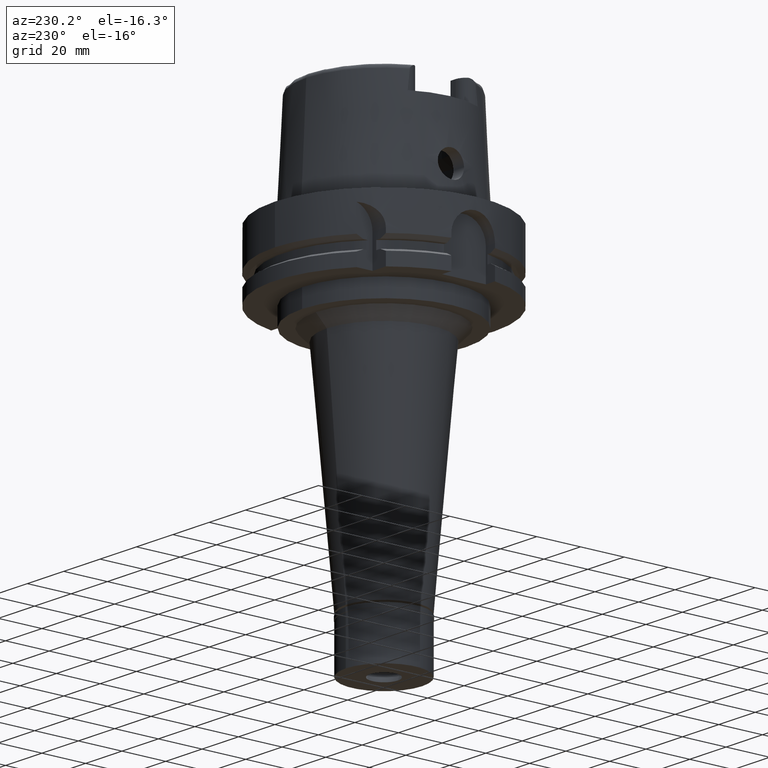
[diagram: clean part render]
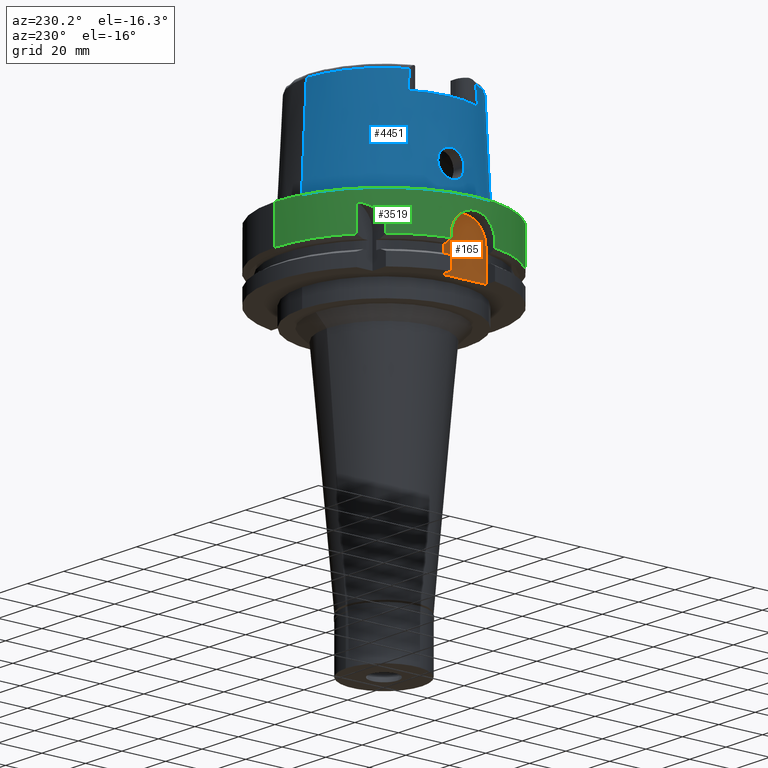
[diagram: same view with three faces highlighted in distinct colors, each labeled with its STEP entity id]
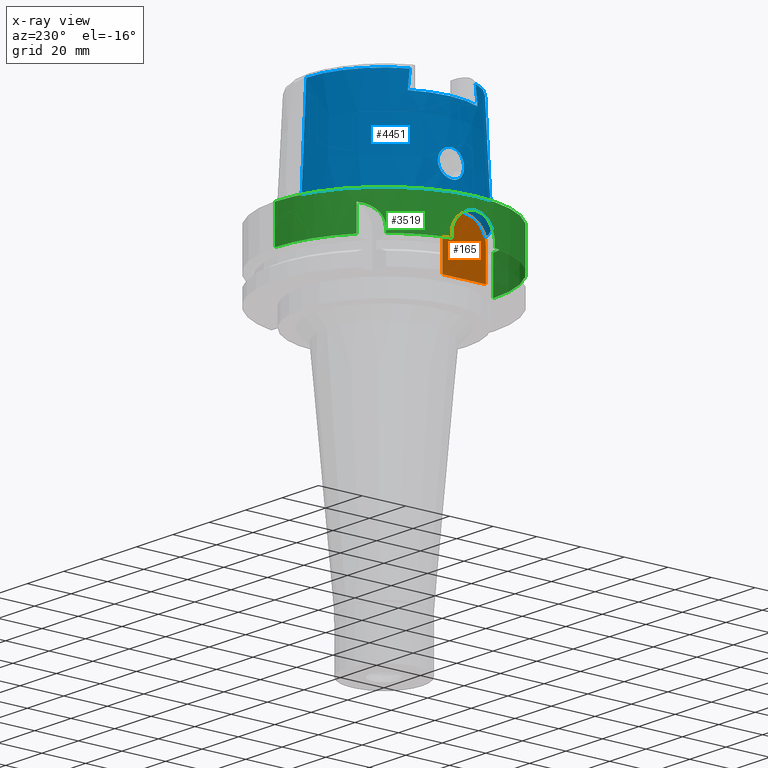
[diagram: x-ray of the same camera — body ghosted, the three highlighted faces saturated]
A machine part, auxiliary view with three faces highlighted in distinct colors.
The next image is the same camera in x-ray (body ghosted, the three faces saturated) — at least one of them is partly hidden behind the body in this view.
Their STEP definitions:

[orange] entity #165 — the highlighted planar face has unit normal (1, 0, 0).
#165 = ADVANCED_FACE ( 'NONE', ( #3697 ), #4884, .F. ) ;
#196 = AXIS2_PLACEMENT_3D ( 'NONE', #2384, #4124, #1540 ) ;
#250 = DIRECTION ( 'NONE',  ( 0.0000000000000000000, 0.0000000000000000000, 1.000000000000000000 ) ) ;
#315 = DIRECTION ( 'NONE',  ( 0.0000000000000000000, 1.000000000000000000, 0.0000000000000000000 ) ) ;
#445 = VERTEX_POINT ( 'NONE', #5253 ) ;
#458 = DIRECTION ( 'NONE',  ( 1.000000000000000000, 0.0000000000000000000, 0.0000000000000000000 ) ) ;
#491 = CARTESIAN_POINT ( 'NONE',  ( -44.00000000000000000, 10.00000000000000000, -29.00000000000000000 ) ) ;
#565 = CARTESIAN_POINT ( 'NONE',  ( -44.00000000000000000, -10.00000000000000000, -29.00000000000000000 ) ) ;
#641 = LINE ( 'NONE', #4100, #5303 ) ;
#997 = VERTEX_POINT ( 'NONE', #491 ) ;
#1146 = DIRECTION ( 'NONE',  ( 0.0000000000000000000, 0.0000000000000000000, -1.000000000000000000 ) ) ;
#1188 = EDGE_CURVE ( 'NONE', #445, #997, #4986, .T. ) ;
#1418 = CIRCLE ( 'NONE', #3675, 10.00000000000000000 ) ;
#1540 = DIRECTION ( 'NONE',  ( 0.0000000000000000000, 1.000000000000000000, 0.0000000000000000000 ) ) ;
#1571 = VECTOR ( 'NONE', #315, 1000.000000000000000 ) ;
#1874 = VERTEX_POINT ( 'NONE', #4251 ) ;
#1985 = CARTESIAN_POINT ( 'NONE',  ( -44.00000000000000000, 10.00000000000000000, -15.00000000000000000 ) ) ;
#1990 = VECTOR ( 'NONE', #1146, 1000.000000000000000 ) ;
#2009 = LINE ( 'NONE', #3692, #1571 ) ;
#2184 = EDGE_CURVE ( 'NONE', #4912, #997, #2009, .T. ) ;
#2384 = CARTESIAN_POINT ( 'NONE',  ( -44.00000000000000000, 0.0000000000000000000, 0.0000000000000000000 ) ) ;
#2428 = ORIENTED_EDGE ( 'NONE', *, *, #1188, .T. ) ;
#2611 = CARTESIAN_POINT ( 'NONE',  ( -44.00000000000000000, 0.0000000000000000000, -15.00000000000000000 ) ) ;
#2706 = DIRECTION ( 'NONE',  ( 0.0000000000000000000, 0.0000000000000000000, 1.000000000000000000 ) ) ;
#2819 = ORIENTED_EDGE ( 'NONE', *, *, #4037, .F. ) ;
#3411 = EDGE_CURVE ( 'NONE', #4912, #1874, #641, .T. ) ;
#3422 = ORIENTED_EDGE ( 'NONE', *, *, #2184, .F. ) ;
#3635 = EDGE_LOOP ( 'NONE', ( #5043, #2819, #2428, #3422 ) ) ;
#3675 = AXIS2_PLACEMENT_3D ( 'NONE', #2611, #458, #2706 ) ;
#3692 = CARTESIAN_POINT ( 'NONE',  ( -44.00000000000000000, -10.00000000000000000, -29.00000000000000000 ) ) ;
#3697 = FACE_OUTER_BOUND ( 'NONE', #3635, .T. ) ;
#4037 = EDGE_CURVE ( 'NONE', #445, #1874, #1418, .T. ) ;
#4100 = CARTESIAN_POINT ( 'NONE',  ( -44.00000000000000000, -10.00000000000000000, -29.00000000000000000 ) ) ;
#4124 = DIRECTION ( 'NONE',  ( 1.000000000000000000, 0.0000000000000000000, 0.0000000000000000000 ) ) ;
#4251 = CARTESIAN_POINT ( 'NONE',  ( -44.00000000000000000, -10.00000000000000000, -15.00000000000000000 ) ) ;
#4884 = PLANE ( 'NONE',  #196 ) ;
#4912 = VERTEX_POINT ( 'NONE', #565 ) ;
#4986 = LINE ( 'NONE', #1985, #1990 ) ;
#5043 = ORIENTED_EDGE ( 'NONE', *, *, #3411, .T. ) ;
#5253 = CARTESIAN_POINT ( 'NONE',  ( -44.00000000000000000, 10.00000000000000000, -15.00000000000000000 ) ) ;
#5303 = VECTOR ( 'NONE', #250, 1000.000000000000000 ) ;

[blue] entity #4451 — the highlighted conical surface has half-angle 2.862 deg.
#24 = CARTESIAN_POINT ( 'NONE',  ( -36.93068436028448076, 5.617670321740685146, 12.89130145594140586 ) ) ;
#27 = CARTESIAN_POINT ( 'NONE',  ( 0.0000000000000000000, 0.0000000000000000000, 48.09987853799000135 ) ) ;
#39 = EDGE_LOOP ( 'NONE', ( #2132, #3728 ) ) ;
#66 = CARTESIAN_POINT ( 'NONE',  ( -36.78948830266099179, -5.983490370262749103, 14.54526738683545162 ) ) ;
#91 = CARTESIAN_POINT ( 'NONE',  ( -32.25000000000000000, 15.37357338888783609, 45.48332191089897947 ) ) ;
#117 = CARTESIAN_POINT ( 'NONE',  ( -36.85894404422809600, -3.184277916997942270, 20.08887708239250713 ) ) ;
#131 = ORIENTED_EDGE ( 'NONE', *, *, #1677, .F. ) ;
#137 = LINE ( 'NONE', #2226, #2557 ) ;
#150 = CARTESIAN_POINT ( 'NONE',  ( -36.86793002416438014, -3.018326314165773461, 20.18926689095858862 ) ) ;
#153 = ORIENTED_EDGE ( 'NONE', *, *, #4420, .T. ) ;
#160 = CARTESIAN_POINT ( 'NONE',  ( -32.25000000000000000, -15.68478778348018210, 42.78313265252550224 ) ) ;
#170 = DIRECTION ( 'NONE',  ( 0.0000000000000000000, -1.000000000000000000, 0.0000000000000000000 ) ) ;
#176 = CARTESIAN_POINT ( 'NONE',  ( -36.95523731448006544, -5.529040350771977863, 12.66967112847068400 ) ) ;
#200 = CARTESIAN_POINT ( 'NONE',  ( -36.91466357299182732, 1.955068129600041171, 20.67420638359301677 ) ) ;
#217 = CARTESIAN_POINT ( 'NONE',  ( -37.37942141452085565, -3.092186478232816782, 9.857925840274342377 ) ) ;
#227 = CARTESIAN_POINT ( 'NONE',  ( -36.73198315790276069, 5.236774363304121493, 17.93427630140174855 ) ) ;
#305 = CARTESIAN_POINT ( 'NONE',  ( -36.87019513624344569, 2.964170396533520879, 20.21776405205810434 ) ) ;
#332 = CARTESIAN_POINT ( 'NONE',  ( -37.23074756365934945, -4.183448302256589812, 10.69895862871962855 ) ) ;
#334 = VERTEX_POINT ( 'NONE', #5136 ) ;
#339 = CARTESIAN_POINT ( 'NONE',  ( -37.01935775380975002, 5.274344948985751458, 12.13801447301412217 ) ) ;
#367 = CARTESIAN_POINT ( 'NONE',  ( -36.75520645655166163, 5.997840051433888320, 15.17277875248655583 ) ) ;
#422 = CARTESIAN_POINT ( 'NONE',  ( -37.21841691081660031, 4.258828831430355955, 10.77358605651554946 ) ) ;
#423 = CARTESIAN_POINT ( 'NONE',  ( -32.24999876011999334, -15.99794043148000000, 40.00000000000000000 ) ) ;
#432 = VERTEX_POINT ( 'NONE', #2185 ) ;
#438 = B_SPLINE_CURVE_WITH_KNOTS ( 'NONE', 3,
 ( #3252, #5056, #728, #1570, #1973, #1101, #2802, #2445, #1180, #1546, #2022, #3308, #2363, #2855, #4102, #3333, #217, #5032, #4599, #1493, #2908, #4623, #3226, #4947, #1947, #1080, #3678, #5400, #1521, #2827, #332, #5084, #4213, #1628, #4659, #3361, #1206, #2936, #788, #2051, #3784, #5503, #4841, #5241, #4870, #3120, #176, #4449, #1788, #2786, #4002, #66, #2665, #4898, #3946, #1362, #4393, #4030, #1900, #1840, #1426, #3515, #4062, #3629, #3605, #5353, #3089, #5302, #5328, #1001, #2324, #4475, #1391, #515, #1877, #624, #975, #1448, #4807, #2261, #1059, #1027, #942, #3154, #3570, #4505, #2727, #567, #2288, #117, #150, #3179, #2751, #1813, #1474, #3200, #598, #2237, #4921 ),
 .UNSPECIFIED., .F., .F.,
 ( 4, 2, 2, 1, 1, 1, 2, 2, 2, 2, 1, 1, 1, 2, 2, 2, 2, 1, 1, 2, 2, 2, 2, 2, 2, 1, 1, 2, 2, 2, 2, 2, 1, 2, 2, 2, 2, 1, 1, 1, 1, 2, 2, 2, 2, 2, 1, 1, 2, 2, 2, 1, 2, 2, 2, 1, 2, 2, 4 ),
 ( 0.0000000000000000000, 0.06250000000000170697, 0.09375000000000252576, 0.1093750000000029837, 0.1171875000000032335, 0.1210937500000033723, 0.1230468750000034833, 0.1250000000000035805, 0.1562500000000048572, 0.1718750000000054678, 0.1796875000000057732, 0.1835937500000058564, 0.1855468750000058842, 0.1865234375000058842, 0.1875000000000058842, 0.2187500000000053568, 0.2343750000000050793, 0.2421875000000048850, 0.2460937500000047740, 0.2480468750000047184, 0.2500000000000046629, 0.2812500000000014433, 0.2968750000000000555, 0.3124999999999986677, 0.3437499999999958922, 0.3593749999999943379, 0.3671874999999935052, 0.3710937499999932832, 0.3749999999999930056, 0.4374999999999905631, 0.4687499999999893974, 0.4843749999999886202, 0.4921874999999881206, 0.4960937499999880096, 0.4999999999999878986, 0.5624999999999853451, 0.5937499999999841238, 0.6093749999999832356, 0.6171874999999827915, 0.6210937499999825695, 0.6230468749999823475, 0.6240234374999823475, 0.6249999999999822364, 0.6874999999999886757, 0.7187499999999918954, 0.7343749999999935607, 0.7421874999999944489, 0.7460937499999948930, 0.7480468749999952260, 0.7499999999999955591, 0.7812499999999972244, 0.7968749999999981126, 0.8046874999999983347, 0.8124999999999985567, 0.8437499999999987788, 0.8593749999999987788, 0.8671874999999987788, 0.8749999999999987788, 1.000000000000000000 ),
 .UNSPECIFIED. ) ;
#505 = FACE_BOUND ( 'NONE', #39, .T. ) ;
#515 = CARTESIAN_POINT ( 'NONE',  ( -36.75653053390755787, -4.828221476589451555, 18.56846901973030839 ) ) ;
#527 = CARTESIAN_POINT ( 'NONE',  ( -32.25000136840999687, 15.06443228278000035, 48.09991921489999811 ) ) ;
#567 = CARTESIAN_POINT ( 'NONE',  ( -36.84474318560327788, -3.423703545557308825, 19.92754143725899851 ) ) ;
#598 = CARTESIAN_POINT ( 'NONE',  ( -36.93369848665521005, -1.519966967173632444, 20.86588692522766664 ) ) ;
#624 = CARTESIAN_POINT ( 'NONE',  ( -36.77364828063821989, -4.558378209594252439, 18.90302554947898628 ) ) ;
#651 = CARTESIAN_POINT ( 'NONE',  ( -36.85257443627512686, 3.289356971688951692, 20.01800090029430024 ) ) ;
#680 = CARTESIAN_POINT ( 'NONE',  ( -36.81715628922307104, 3.887143032744000859, 19.57163193421597214 ) ) ;
#728 = CARTESIAN_POINT ( 'NONE',  ( -37.54237951231164061, -0.7534743950294695569, 9.034802957735099227 ) ) ;
#732 = EDGE_LOOP ( 'NONE', ( #2653, #937, #3037, #2642, #131, #153, #1895, #2447 ) ) ;
#739 = LINE ( 'NONE', #2146, #5286 ) ;
#760 = CARTESIAN_POINT ( 'NONE',  ( -36.74781720243431238, 5.991735761482282818, 15.33907715070706601 ) ) ;
#788 = CARTESIAN_POINT ( 'NONE',  ( -37.09653634253758980, -4.923255396705496167, 11.56912838913505936 ) ) ;
#821 = CARTESIAN_POINT ( 'NONE',  ( -37.20985797293272412, 4.309473625512322492, 10.82513451982124586 ) ) ;
#847 = CARTESIAN_POINT ( 'NONE',  ( -37.05825323781632363, 5.102623598740752442, 11.84270549582950771 ) ) ;
#883 = CARTESIAN_POINT ( 'NONE',  ( -36.94480358421540700, 5.567225764327171866, 12.76252301544932521 ) ) ;
#937 = ORIENTED_EDGE ( 'NONE', *, *, #2805, .T. ) ;
#942 = CARTESIAN_POINT ( 'NONE',  ( -36.80255068474041735, -4.111916453154789153, 19.37386698733754642 ) ) ;
#975 = CARTESIAN_POINT ( 'NONE',  ( -36.78079645898990435, -4.447312784221773896, 19.02796649498167270 ) ) ;
#987 = B_SPLINE_CURVE_WITH_KNOTS ( 'NONE', 3,
 ( #3977, #91, #3541, #5270 ),
 .UNSPECIFIED., .F., .F.,
 ( 4, 4 ),
 ( 0.0000000000000000000, 1.000000000000000000 ),
 .UNSPECIFIED. ) ;
#1001 = CARTESIAN_POINT ( 'NONE',  ( -36.71910970930957063, -5.545533153418433336, 17.29065203007789364 ) ) ;
#1027 = CARTESIAN_POINT ( 'NONE',  ( -36.79298029499037881, -4.259190257377762912, 19.22604413286766700 ) ) ;
#1030 = EDGE_CURVE ( 'NONE', #4326, #432, #4968, .T. ) ;
#1059 = CARTESIAN_POINT ( 'NONE',  ( -36.79221737387307201, -4.270934812731067787, 19.21418130331075957 ) ) ;
#1080 = CARTESIAN_POINT ( 'NONE',  ( -37.28518679442415618, -3.827104306910952491, 10.37799374666771790 ) ) ;
#1085 = CARTESIAN_POINT ( 'NONE',  ( -36.90237954545867183, 2.272849529550918568, 20.55285498938613742 ) ) ;
#1101 = CARTESIAN_POINT ( 'NONE',  ( -37.49283556371231896, -1.803152860645853117, 9.276495912505875907 ) ) ;
#1106 = CARTESIAN_POINT ( 'NONE',  ( -36.71932881182011954, 5.538174630500861895, 17.30840580529251937 ) ) ;
#1125 = DIRECTION ( 'NONE',  ( -0.8958345712659759874, -0.4443876921390880197, 0.0000000000000000000 ) ) ;
#1135 = CARTESIAN_POINT ( 'NONE',  ( -36.85046108883013716, 3.326711515121958396, 19.99330972901003278 ) ) ;
#1136 = CIRCLE ( 'NONE', #1491, 38.00001658251999714 ) ;
#1163 = CARTESIAN_POINT ( 'NONE',  ( -36.90187714742415181, 2.285054288073348427, 20.54784376291257075 ) ) ;
#1180 = CARTESIAN_POINT ( 'NONE',  ( -37.46510107565926262, -2.193266545402262402, 9.415136530644529600 ) ) ;
#1186 = CARTESIAN_POINT ( 'NONE',  ( -36.90823920757393495, 2.126274937019970501, 20.61103914958664873 ) ) ;
#1198 = CARTESIAN_POINT ( 'NONE',  ( 0.0000000000000000000, 35.59494289391000166, 48.09987853799000135 ) ) ;
#1206 = CARTESIAN_POINT ( 'NONE',  ( -37.13186623513949769, -4.746795368158858608, 11.32880529840026718 ) ) ;
#1214 = CARTESIAN_POINT ( 'NONE',  ( -37.42948711580961429, 2.608070023819862637, 9.595758542897517174 ) ) ;
#1247 = CARTESIAN_POINT ( 'NONE',  ( -37.07944210104972882, 5.003801075000452236, 11.68908971727001145 ) ) ;
#1270 = CARTESIAN_POINT ( 'NONE',  ( -36.94822394848094405, 5.554785405398306786, 12.73187237993180254 ) ) ;
#1295 = CARTESIAN_POINT ( 'NONE',  ( -36.90758312289656118, 5.696177482428607775, 13.11204638049937365 ) ) ;
#1321 = VERTEX_POINT ( 'NONE', #4785 ) ;
#1343 = B_SPLINE_CURVE_WITH_KNOTS ( 'NONE', 3,
 ( #3233, #4953, #5376, #5040, #1580, #2368, #200, #1186, #2400, #4085, #1085, #1163, #1927, #3652, #4529, #2004, #305, #1979, #1553, #4140, #651, #3734, #1135, #4108, #2866, #680, #5455, #2888, #3684, #4554, #4584, #2030, #4605, #2452, #4188, #227, #5405, #1526, #3765, #5485, #3258, #4979, #1106, #3340, #1610, #5062, #2914, #4630, #5147, #760, #367, #2599, #2945, #3906, #4221, #2086, #2483, #4717, #4691, #1295, #5122, #24, #2110, #883, #5173, #1270, #3397, #5090, #2998, #339, #1693, #3851, #847, #5537, #2058, #5571, #1247, #2566, #3427, #3451, #2511, #1635, #821, #1743, #4303, #422, #3023, #5203, #3479, #4745, #2540, #1214, #3791, #1716, #5510, #3367, #4666, #4329, #4247, #3818, #2143 ),
 .UNSPECIFIED., .F., .F.,
 ( 4, 2, 2, 1, 1, 1, 1, 2, 2, 2, 2, 1, 1, 2, 2, 2, 1, 1, 1, 2, 2, 2, 2, 2, 1, 1, 2, 2, 2, 2, 1, 1, 2, 2, 2, 2, 2, 1, 1, 1, 2, 2, 2, 2, 1, 1, 2, 2, 2, 1, 1, 1, 2, 2, 2, 2, 2, 1, 1, 2, 2, 4 ),
 ( 0.0000000000000000000, 0.06249999999997654654, 0.09374999999996487532, 0.1093749999999590328, 0.1171874999999560490, 0.1210937499999545502, 0.1230468749999538841, 0.1240234374999535788, 0.1249999999999532874, 0.1562499999999483469, 0.1718749999999459321, 0.1796874999999447386, 0.1835937499999439615, 0.1855468749999435729, 0.1874999999999432121, 0.2187499999999383826, 0.2343749999999358569, 0.2421874999999347189, 0.2460937499999341915, 0.2480468749999340805, 0.2499999999999339972, 0.3124999999999306666, 0.3437499999999292788, 0.3593749999999283351, 0.3671874999999275579, 0.3710937499999273914, 0.3730468749999276690, 0.3749999999999279465, 0.4374999999999317213, 0.4687499999999338862, 0.4843749999999348854, 0.4921874999999353850, 0.4960937499999357181, 0.4999999999999361622, 0.5624999999999384936, 0.5937499999999396039, 0.6093749999999401590, 0.6171874999999404920, 0.6210937499999407141, 0.6230468749999407141, 0.6240234374999409361, 0.6249999999999410472, 0.6562499999999493738, 0.6718749999999535927, 0.6796874999999557021, 0.6835937499999565903, 0.6855468749999571454, 0.6874999999999575895, 0.7187499999999646949, 0.7343749999999680256, 0.7421874999999696909, 0.7460937499999704681, 0.7480468749999709122, 0.7499999999999712452, 0.8124999999999792388, 0.8437499999999831246, 0.8593749999999851230, 0.8671874999999861222, 0.8710937499999865663, 0.8730468749999867883, 0.8749999999999870104, 1.000000000000000000 ),
 .UNSPECIFIED. ) ;
#1355 = DIRECTION ( 'NONE',  ( 0.0000000000000000000, 0.0000000000000000000, -1.000000000000000000 ) ) ;
#1362 = CARTESIAN_POINT ( 'NONE',  ( -36.76804357732692097, -5.999429868617379036, 14.91422846187562534 ) ) ;
#1391 = CARTESIAN_POINT ( 'NONE',  ( -36.74922141481820148, -4.946669627970263328, 18.40127601821275860 ) ) ;
#1426 = CARTESIAN_POINT ( 'NONE',  ( -36.71983978496632517, -5.850209405998165302, 16.34663072168687492 ) ) ;
#1436 = DIRECTION ( 'NONE',  ( 0.0000000000000000000, 0.0000000000000000000, -1.000000000000000000 ) ) ;
#1448 = CARTESIAN_POINT ( 'NONE',  ( -36.78447469435539574, -4.390340804249038165, 19.09030350053581770 ) ) ;
#1474 = CARTESIAN_POINT ( 'NONE',  ( -36.89720204131685222, -2.396380892052553335, 20.50090017222609973 ) ) ;
#1491 = AXIS2_PLACEMENT_3D ( 'NONE', #4908, #3592, #2335 ) ;
#1493 = CARTESIAN_POINT ( 'NONE',  ( -37.35849965726874444, -3.271449603960510544, 9.970297054387952329 ) ) ;
#1521 = CARTESIAN_POINT ( 'NONE',  ( -37.24667974892861366, -4.083408332188057877, 10.60329249490514059 ) ) ;
#1526 = CARTESIAN_POINT ( 'NONE',  ( -36.72417672554296786, 5.403963330662647557, 17.60865077568504589 ) ) ;
#1546 = CARTESIAN_POINT ( 'NONE',  ( -37.46230976244942212, -2.228500343036424969, 9.429188003894592995 ) ) ;
#1553 = CARTESIAN_POINT ( 'NONE',  ( -36.85914293869403480, 3.171399046966177693, 20.09388051114300566 ) ) ;
#1560 = CARTESIAN_POINT ( 'NONE',  ( -37.55000165825000380, 1.432651546991000008E-13, 9.000000000000000000 ) ) ;
#1570 = CARTESIAN_POINT ( 'NONE',  ( -37.51951307449654394, -1.326390594782912213, 9.145214534731081812 ) ) ;
#1580 = CARTESIAN_POINT ( 'NONE',  ( -36.92871489439841071, 1.515124253372864160, 20.80912816999386195 ) ) ;
#1585 = AXIS2_PLACEMENT_3D ( 'NONE', #2718, #1355, #4441 ) ;
#1610 = CARTESIAN_POINT ( 'NONE',  ( -36.71471751628179447, 5.699815414603405017, 16.91674895757925512 ) ) ;
#1628 = CARTESIAN_POINT ( 'NONE',  ( -37.20135065998335477, -4.363750205416232930, 10.87730290193003491 ) ) ;
#1635 = CARTESIAN_POINT ( 'NONE',  ( -37.19964222875668014, 4.369287652776453257, 10.88738715148047120 ) ) ;
#1676 = CIRCLE ( 'NONE', #4209, 35.99995025243999436 ) ;
#1677 = EDGE_CURVE ( 'NONE', #3574, #1321, #137, .T. ) ;
#1693 = CARTESIAN_POINT ( 'NONE',  ( -37.03086641625247921, 5.224984741139677702, 12.04860475421034849 ) ) ;
#1716 = CARTESIAN_POINT ( 'NONE',  ( -37.44575884311537095, 2.427486219651590282, 9.512686742040020960 ) ) ;
#1743 = CARTESIAN_POINT ( 'NONE',  ( -37.21423938862605496, 4.283593737668425661, 10.79869344262188235 ) ) ;
#1763 = AXIS2_PLACEMENT_3D ( 'NONE', #3508, #3082, #170 ) ;
#1788 = CARTESIAN_POINT ( 'NONE',  ( -36.86952740308952059, -5.819990045851543670, 13.48873908072869554 ) ) ;
#1813 = CARTESIAN_POINT ( 'NONE',  ( -36.89319869463511736, -2.488522167589396261, 20.45983530026390795 ) ) ;
#1832 = DIRECTION ( 'NONE',  ( 5.154182075151068004E-05, -0.04993927430816067631, -0.9987522546783135224 ) ) ;
#1834 = FACE_OUTER_BOUND ( 'NONE', #732, .T. ) ;
#1840 = CARTESIAN_POINT ( 'NONE',  ( -36.73088590037880863, -5.963266752867208531, 15.77000468351162255 ) ) ;
#1877 = CARTESIAN_POINT ( 'NONE',  ( -36.76916055157622765, -4.628582496802413182, 18.81937789610271494 ) ) ;
#1884 = CARTESIAN_POINT ( 'NONE',  ( -32.24999491821000674, -15.06448480959000058, 48.09973261137000122 ) ) ;
#1888 = EDGE_CURVE ( 'NONE', #5516, #5346, #739, .T. ) ;
#1895 = ORIENTED_EDGE ( 'NONE', *, *, #1030, .F. ) ;
#1900 = CARTESIAN_POINT ( 'NONE',  ( -36.74416162721585977, -5.999691590783129413, 15.38432239048979433 ) ) ;
#1927 = CARTESIAN_POINT ( 'NONE',  ( -36.90156833131312908, 2.292520458140707706, 20.54476115211884846 ) ) ;
#1947 = CARTESIAN_POINT ( 'NONE',  ( -37.31760158905910885, -3.596836852099233983, 10.19360411673598854 ) ) ;
#1973 = CARTESIAN_POINT ( 'NONE',  ( -37.50998539207360238, -1.517595064904188717, 9.191700564481235958 ) ) ;
#1979 = CARTESIAN_POINT ( 'NONE',  ( -36.86289865209826644, 3.101802539046026208, 20.13630830163323893 ) ) ;
#2004 = CARTESIAN_POINT ( 'NONE',  ( -36.87477286878913674, 2.874501599759789805, 20.26753526200636202 ) ) ;
#2022 = CARTESIAN_POINT ( 'NONE',  ( -37.46043399997240186, -2.251974520880366093, 9.438635883870666987 ) ) ;
#2030 = CARTESIAN_POINT ( 'NONE',  ( -36.79435042926617427, 4.238498356299355230, 19.24680153727535981 ) ) ;
#2051 = CARTESIAN_POINT ( 'NONE',  ( -37.06201760209832230, -5.085029643574605629, 11.80942507223500826 ) ) ;
#2058 = CARTESIAN_POINT ( 'NONE',  ( -37.07431793832091671, 5.027960547993204798, 11.72588791006174169 ) ) ;
#2086 = CARTESIAN_POINT ( 'NONE',  ( -36.80588154019729785, 5.968764640708219105, 14.27421587733758734 ) ) ;
#2110 = CARTESIAN_POINT ( 'NONE',  ( -36.94005279678179932, 5.584365185960566969, 12.80544222860329207 ) ) ;
#2126 = CONICAL_SURFACE ( 'NONE', #1585, 36.79747973821000073, 0.04996004983832824653 ) ;
#2132 = ORIENTED_EDGE ( 'NONE', *, *, #3244, .F. ) ;
#2143 = CARTESIAN_POINT ( 'NONE',  ( -37.55000165825000380, 1.432651546991000008E-13, 9.000000000000000000 ) ) ;
#2146 = CARTESIAN_POINT ( 'NONE',  ( 0.002482252536764999965, 35.59494263424999616, 48.09987853799000135 ) ) ;
#2185 = CARTESIAN_POINT ( 'NONE',  ( -32.24999491821000674, -15.06448480959000058, 48.09973261137000122 ) ) ;
#2226 = CARTESIAN_POINT ( 'NONE',  ( -0.002482252536761000127, -35.59494263424999616, 48.09987853799000135 ) ) ;
#2237 = CARTESIAN_POINT ( 'NONE',  ( -36.94998175923001327, -0.7278227155682477356, 21.00000000000000000 ) ) ;
#2261 = CARTESIAN_POINT ( 'NONE',  ( -36.79090450692651615, -4.291155834307972761, 19.19358913550872003 ) ) ;
#2288 = CARTESIAN_POINT ( 'NONE',  ( -36.84722192602135493, -3.382045756816048243, 19.95621175769118238 ) ) ;
#2324 = CARTESIAN_POINT ( 'NONE',  ( -36.72267385357936575, -5.422009391726761329, 17.58899547121569285 ) ) ;
#2335 = DIRECTION ( 'NONE',  ( 0.0000000000000000000, 1.000000000000000000, 0.0000000000000000000 ) ) ;
#2363 = CARTESIAN_POINT ( 'NONE',  ( -37.44482199348122009, -2.444146266252362754, 9.517354888124359036 ) ) ;
#2368 = CARTESIAN_POINT ( 'NONE',  ( -36.91960052375630852, 1.808268764449747490, 20.72193647073777711 ) ) ;
#2400 = CARTESIAN_POINT ( 'NONE',  ( -36.90486087748351451, 2.211802759094635196, 20.57755679313243391 ) ) ;
#2445 = CARTESIAN_POINT ( 'NONE',  ( -37.47145782627583088, -2.110902745502333477, 9.383191189433668811 ) ) ;
#2447 = ORIENTED_EDGE ( 'NONE', *, *, #4607, .T. ) ;
#2452 = CARTESIAN_POINT ( 'NONE',  ( -36.75576053880082839, 4.821040608673471617, 18.59329904378595089 ) ) ;
#2483 = CARTESIAN_POINT ( 'NONE',  ( -36.85247190370952808, 5.860243091004821103, 13.69777905233035220 ) ) ;
#2511 = CARTESIAN_POINT ( 'NONE',  ( -37.17924097683836493, 4.486598932185430932, 11.01409113357819081 ) ) ;
#2540 = CARTESIAN_POINT ( 'NONE',  ( -37.42175262036973749, 2.689172065116447019, 9.635596461856980710 ) ) ;
#2557 = VECTOR ( 'NONE', #1832, 1000.000000000000227 ) ;
#2566 = CARTESIAN_POINT ( 'NONE',  ( -37.10389684733820559, 4.887749060832257797, 11.51448047992578694 ) ) ;
#2599 = CARTESIAN_POINT ( 'NONE',  ( -36.75857950394084384, 5.999184936472977014, 15.10168916024062113 ) ) ;
#2642 = ORIENTED_EDGE ( 'NONE', *, *, #2958, .T. ) ;
#2653 = ORIENTED_EDGE ( 'NONE', *, *, #4644, .F. ) ;
#2665 = CARTESIAN_POINT ( 'NONE',  ( -36.78368055871689535, -5.989816455957473806, 14.63855911721098124 ) ) ;
#2673 = AXIS2_PLACEMENT_3D ( 'NONE', #27, #1436, #3617 ) ;
#2718 = CARTESIAN_POINT ( 'NONE',  ( 0.0000000000000000000, 0.0000000000000000000, 24.04993926899999934 ) ) ;
#2727 = CARTESIAN_POINT ( 'NONE',  ( -36.83995093617954808, -3.503883313833868751, 19.87085334482600629 ) ) ;
#2751 = CARTESIAN_POINT ( 'NONE',  ( -36.88712022811954938, -2.625407494083750404, 20.39674027922348643 ) ) ;
#2768 = CIRCLE ( 'NONE', #1763, 35.59494289391000166 ) ;
#2786 = CARTESIAN_POINT ( 'NONE',  ( -36.82225484939149140, -5.930949391783180147, 14.07108249177406734 ) ) ;
#2802 = CARTESIAN_POINT ( 'NONE',  ( -37.48354607334994881, -1.945617252348612602, 9.322657709143944871 ) ) ;
#2805 = EDGE_CURVE ( 'NONE', #5385, #5516, #3299, .T. ) ;
#2827 = CARTESIAN_POINT ( 'NONE',  ( -37.23558403682853424, -4.153386183039518897, 10.66978754862702061 ) ) ;
#2855 = CARTESIAN_POINT ( 'NONE',  ( -37.42924495953226227, -2.615727433240564448, 9.596658087141554105 ) ) ;
#2866 = CARTESIAN_POINT ( 'NONE',  ( -36.83120337092175589, 3.658941622433365737, 19.75930080993400750 ) ) ;
#2888 = CARTESIAN_POINT ( 'NONE',  ( -36.80191181825195912, 4.125073486424418512, 19.35752367039121680 ) ) ;
#2908 = CARTESIAN_POINT ( 'NONE',  ( -37.35653168279414160, -3.287736707483631893, 9.980953325986675395 ) ) ;
#2914 = CARTESIAN_POINT ( 'NONE',  ( -36.72724554129487018, 5.925790217011615013, 15.96076466168625352 ) ) ;
#2936 = CARTESIAN_POINT ( 'NONE',  ( -37.10850737960728907, -4.864947724688368780, 11.48687881787749987 ) ) ;
#2945 = CARTESIAN_POINT ( 'NONE',  ( -36.76087402979943164, 5.999800645264349974, 15.05433971291989081 ) ) ;
#2958 = EDGE_CURVE ( 'NONE', #5346, #1321, #1136, .T. ) ;
#2998 = CARTESIAN_POINT ( 'NONE',  ( -36.98653728770184301, 5.410815985838224762, 12.39965895358514203 ) ) ;
#3015 = CARTESIAN_POINT ( 'NONE',  ( 1.065814103639999922E-14, -35.59494289391000166, 48.09987853799000135 ) ) ;
#3023 = CARTESIAN_POINT ( 'NONE',  ( -37.27342411922899146, 3.931102833365553995, 10.44489125199085677 ) ) ;
#3037 = ORIENTED_EDGE ( 'NONE', *, *, #1888, .T. ) ;
#3082 = DIRECTION ( 'NONE',  ( 0.0000000000000000000, 0.0000000000000000000, -1.000000000000000000 ) ) ;
#3089 = CARTESIAN_POINT ( 'NONE',  ( -36.71869702063381879, -5.560399263774947975, 17.25438205851850171 ) ) ;
#3120 = CARTESIAN_POINT ( 'NONE',  ( -36.95774247581792338, -5.519702514509191360, 12.64765544481278603 ) ) ;
#3154 = CARTESIAN_POINT ( 'NONE',  ( -36.81172298844475677, -3.966469710827151829, 19.50618323789827002 ) ) ;
#3179 = CARTESIAN_POINT ( 'NONE',  ( -36.88082142212511627, -2.758237774504860074, 20.32933584327264853 ) ) ;
#3200 = CARTESIAN_POINT ( 'NONE',  ( -36.89909653243376653, -2.351856176960374967, 20.52010695904553472 ) ) ;
#3212 = CARTESIAN_POINT ( 'NONE',  ( -32.25000000000000000, -15.37363590951685310, 45.48304352298217168 ) ) ;
#3226 = CARTESIAN_POINT ( 'NONE',  ( -37.35442599023748755, -3.305092098787870025, 9.992366476611984183 ) ) ;
#3233 = CARTESIAN_POINT ( 'NONE',  ( -36.94998175923000616, 0.0000000000000000000, 21.00000000000000000 ) ) ;
#3244 = EDGE_CURVE ( 'NONE', #4940, #3890, #1343, .T. ) ;
#3252 = CARTESIAN_POINT ( 'NONE',  ( -37.55000165825000380, 1.432651546991000008E-13, 9.000000000000000000 ) ) ;
#3258 = CARTESIAN_POINT ( 'NONE',  ( -36.71996599462816846, 5.517294570451720226, 17.35802378310761185 ) ) ;
#3299 = CIRCLE ( 'NONE', #2673, 35.59494289391000166 ) ;
#3308 = CARTESIAN_POINT ( 'NONE',  ( -37.45939302658398873, -2.264880851875255008, 9.443882236368065008 ) ) ;
#3333 = CARTESIAN_POINT ( 'NONE',  ( -37.39389887064329798, -2.961865049628786828, 9.781041200687223380 ) ) ;
#3340 = CARTESIAN_POINT ( 'NONE',  ( -36.71922849489773455, 5.541580192827907148, 17.30022759658116271 ) ) ;
#3361 = CARTESIAN_POINT ( 'NONE',  ( -37.14350618678874127, -4.685769057285028794, 11.25122618099138272 ) ) ;
#3367 = CARTESIAN_POINT ( 'NONE',  ( -37.45415471405201657, 2.328336710641643048, 9.470175159862636249 ) ) ;
#3397 = CARTESIAN_POINT ( 'NONE',  ( -36.94905711816342375, 5.551742339352029099, 12.72443760906969601 ) ) ;
#3427 = CARTESIAN_POINT ( 'NONE',  ( -37.12700522827056204, 4.770410228953955389, 11.35553523083723526 ) ) ;
#3451 = CARTESIAN_POINT ( 'NONE',  ( -37.16180602336625327, 4.583087280777239592, 11.12636536592282965 ) ) ;
#3479 = CARTESIAN_POINT ( 'NONE',  ( -37.37920281482522711, 3.099542669340462631, 9.858800169971631888 ) ) ;
#3508 = CARTESIAN_POINT ( 'NONE',  ( 0.0000000000000000000, 0.0000000000000000000, 48.09987853799000135 ) ) ;
#3515 = CARTESIAN_POINT ( 'NONE',  ( -36.71763565896932846, -5.802808086979052149, 16.53850340183243262 ) ) ;
#3541 = CARTESIAN_POINT ( 'NONE',  ( -32.25000000000000000, 15.68473281824450360, 42.78334883926564913 ) ) ;
#3570 = CARTESIAN_POINT ( 'NONE',  ( -36.82572876108707760, -3.739095758393674807, 19.69348540475716547 ) ) ;
#3574 = VERTEX_POINT ( 'NONE', #3015 ) ;
#3592 = DIRECTION ( 'NONE',  ( 0.0000000000000000000, 0.0000000000000000000, 1.000000000000000000 ) ) ;
#3605 = CARTESIAN_POINT ( 'NONE',  ( -36.71753692565550153, -5.609056850070309075, 17.13141103669789445 ) ) ;
#3617 = DIRECTION ( 'NONE',  ( -0.9060276961631030801, 0.4232183996300014628, 0.0000000000000000000 ) ) ;
#3629 = CARTESIAN_POINT ( 'NONE',  ( -36.71655589571998490, -5.670105716437980448, 16.96659767610986691 ) ) ;
#3652 = CARTESIAN_POINT ( 'NONE',  ( -36.89508221955805567, 2.448815815209770985, 20.47998330144866586 ) ) ;
#3678 = CARTESIAN_POINT ( 'NONE',  ( -37.27380466833034234, -3.905233864571622249, 10.44365026671027685 ) ) ;
#3684 = CARTESIAN_POINT ( 'NONE',  ( -36.79780178083679232, 4.187045059977624994, 19.29764058125398307 ) ) ;
#3728 = ORIENTED_EDGE ( 'NONE', *, *, #4642, .F. ) ;
#3734 = CARTESIAN_POINT ( 'NONE',  ( -36.85123297236403062, 3.313111902457782865, 20.00234863282696907 ) ) ;
#3765 = CARTESIAN_POINT ( 'NONE',  ( -36.72196370857368208, 5.460063814629029899, 17.48790529910925429 ) ) ;
#3784 = CARTESIAN_POINT ( 'NONE',  ( -37.03946211553656553, -5.186543861696296887, 11.97691941757308420 ) ) ;
#3791 = CARTESIAN_POINT ( 'NONE',  ( -37.44044263757860591, 2.487500549168244923, 9.539752316804584353 ) ) ;
#3818 = CARTESIAN_POINT ( 'NONE',  ( -37.55000165825001091, 0.7490568217931576900, 9.000000000000015987 ) ) ;
#3851 = CARTESIAN_POINT ( 'NONE',  ( -37.04898217052668485, 5.144486945680219137, 11.91178790782937469 ) ) ;
#3890 = VERTEX_POINT ( 'NONE', #1560 ) ;
#3906 = CARTESIAN_POINT ( 'NONE',  ( -36.76210754197460062, 5.999969531316335924, 15.02943242592925266 ) ) ;
#3946 = CARTESIAN_POINT ( 'NONE',  ( -36.77170041772060216, -5.998325193005183742, 14.84592248351505184 ) ) ;
#3977 = CARTESIAN_POINT ( 'NONE',  ( -32.25000136840999687, 15.06443228278000035, 48.09991921489999811 ) ) ;
#4002 = CARTESIAN_POINT ( 'NONE',  ( -36.80815414349662262, -5.957543378952573576, 14.26282164308197586 ) ) ;
#4030 = CARTESIAN_POINT ( 'NONE',  ( -36.76454821499409320, -6.000017196807876374, 14.98112808232502680 ) ) ;
#4062 = CARTESIAN_POINT ( 'NONE',  ( -36.71654633868462270, -5.716819321835131085, 16.82424517114131390 ) ) ;
#4085 = CARTESIAN_POINT ( 'NONE',  ( -36.90313017559292064, 2.254540073096907626, 20.56033749921471099 ) ) ;
#4102 = CARTESIAN_POINT ( 'NONE',  ( -37.40308472794812644, -2.875086155995622672, 9.732798365956803366 ) ) ;
#4108 = CARTESIAN_POINT ( 'NONE',  ( -36.84054984583748649, 3.500641691203163486, 19.87691559755228354 ) ) ;
#4140 = CARTESIAN_POINT ( 'NONE',  ( -36.85457319822536704, 3.253801496612938049, 20.04124689404623183 ) ) ;
#4188 = CARTESIAN_POINT ( 'NONE',  ( -36.73711105150942302, 5.141478364371677046, 18.09899304143069187 ) ) ;
#4209 = AXIS2_PLACEMENT_3D ( 'NONE', #4547, #5448, #1125 ) ;
#4213 = CARTESIAN_POINT ( 'NONE',  ( -37.22566612349646675, -4.214817382085279007, 10.72969947506723898 ) ) ;
#4221 = CARTESIAN_POINT ( 'NONE',  ( -36.78131337836991577, 6.000416940014626555, 14.64905624721882837 ) ) ;
#4247 = CARTESIAN_POINT ( 'NONE',  ( -37.51913757141506522, 1.534098987940566650, 9.142247367810613312 ) ) ;
#4303 = CARTESIAN_POINT ( 'NONE',  ( -37.21716105233672067, 4.266286294967534864, 10.78111942005551604 ) ) ;
#4308 = DIRECTION ( 'NONE',  ( -5.154182075159067383E-05, 0.04993927430816067631, -0.9987522546783135224 ) ) ;
#4326 = VERTEX_POINT ( 'NONE', #423 ) ;
#4329 = CARTESIAN_POINT ( 'NONE',  ( -37.45644489503161623, 2.300676420460169513, 9.458605700444660869 ) ) ;
#4393 = CARTESIAN_POINT ( 'NONE',  ( -36.76565745910626504, -5.999907183192873639, 14.95963543285103547 ) ) ;
#4420 = EDGE_CURVE ( 'NONE', #3574, #432, #2768, .T. ) ;
#4441 = DIRECTION ( 'NONE',  ( 0.0000000000000000000, -1.000000000000000000, 0.0000000000000000000 ) ) ;
#4449 = CARTESIAN_POINT ( 'NONE',  ( -36.90766968690603989, -5.704305210125483860, 13.09076359337546691 ) ) ;
#4451 = ADVANCED_FACE ( 'NONE', ( #1834, #505 ), #2126, .T. ) ;
#4475 = CARTESIAN_POINT ( 'NONE',  ( -36.73062673561945246, -5.263048155837344311, 17.90743872691207272 ) ) ;
#4505 = CARTESIAN_POINT ( 'NONE',  ( -36.83279347667973980, -3.623109305322651075, 19.78434503423446245 ) ) ;
#4529 = CARTESIAN_POINT ( 'NONE',  ( -36.88764629577304532, 2.613026870536664603, 20.40470529334038829 ) ) ;
#4547 = CARTESIAN_POINT ( 'NONE',  ( 0.0000000000000000000, 0.0000000000000000000, 40.00000000000000000 ) ) ;
#4554 = CARTESIAN_POINT ( 'NONE',  ( -36.79603969476173120, 4.213365846920699376, 19.27173264550502196 ) ) ;
#4584 = CARTESIAN_POINT ( 'NONE',  ( -36.79486482816312787, 4.230859714970590879, 19.25440684783555767 ) ) ;
#4599 = CARTESIAN_POINT ( 'NONE',  ( -37.36305338918482732, -3.233437036036493240, 9.945689625136706624 ) ) ;
#4605 = CARTESIAN_POINT ( 'NONE',  ( -36.77254793895697560, 4.561075869403645733, 18.92336577325733060 ) ) ;
#4607 = EDGE_CURVE ( 'NONE', #4326, #334, #1676, .T. ) ;
#4623 = CARTESIAN_POINT ( 'NONE',  ( -37.35521606090396318, -3.298593763821414893, 9.988082068215996756 ) ) ;
#4630 = CARTESIAN_POINT ( 'NONE',  ( -36.73239081600671341, 5.953618030413993623, 15.76897311783375599 ) ) ;
#4642 = EDGE_CURVE ( 'NONE', #3890, #4940, #438, .T. ) ;
#4644 = EDGE_CURVE ( 'NONE', #5385, #334, #987, .T. ) ;
#4659 = CARTESIAN_POINT ( 'NONE',  ( -37.17830761338595380, -4.497062470914015009, 11.02314491716457923 ) ) ;
#4666 = CARTESIAN_POINT ( 'NONE',  ( -37.45579215310785060, 2.308589373091156638, 9.461901977468041736 ) ) ;
#4691 = CARTESIAN_POINT ( 'NONE',  ( -36.89778928715050910, 5.727695755903486230, 13.21006060820629102 ) ) ;
#4717 = CARTESIAN_POINT ( 'NONE',  ( -36.86962504500879589, 5.813904644804948951, 13.50332382424453570 ) ) ;
#4745 = CARTESIAN_POINT ( 'NONE',  ( -37.39725669126839591, 2.934090950079358162, 9.763111882039268608 ) ) ;
#4779 = CARTESIAN_POINT ( 'NONE',  ( -36.94998175923000616, 0.0000000000000000000, 21.00000000000000000 ) ) ;
#4785 = CARTESIAN_POINT ( 'NONE',  ( 0.0000000000000000000, -38.00001658251999714, 6.821210263297000155E-13 ) ) ;
#4792 = CARTESIAN_POINT ( 'NONE',  ( 0.0000000000000000000, 38.00001658251999714, 1.023181539494999863E-12 ) ) ;
#4807 = CARTESIAN_POINT ( 'NONE',  ( -36.78894822478038407, -4.321300955521114595, 19.16266781657789053 ) ) ;
#4841 = CARTESIAN_POINT ( 'NONE',  ( -36.98991191431669989, -5.395400792725409289, 12.37182651702424252 ) ) ;
#4870 = CARTESIAN_POINT ( 'NONE',  ( -36.96306715510159080, -5.499657975557528999, 12.60116634447394190 ) ) ;
#4878 = CARTESIAN_POINT ( 'NONE',  ( -32.24999876011999334, -15.99794043148000000, 40.00000000000000000 ) ) ;
#4898 = CARTESIAN_POINT ( 'NONE',  ( -36.77559024730242498, -5.996034148705846611, 14.77704336855361511 ) ) ;
#4908 = CARTESIAN_POINT ( 'NONE',  ( 0.0000000000000000000, 0.0000000000000000000, 1.023181539494999863E-12 ) ) ;
#4921 = CARTESIAN_POINT ( 'NONE',  ( -36.94998175923000616, 0.0000000000000000000, 21.00000000000000000 ) ) ;
#4940 = VERTEX_POINT ( 'NONE', #4779 ) ;
#4947 = CARTESIAN_POINT ( 'NONE',  ( -37.33690267395378015, -3.448877717545037136, 10.08744634801688278 ) ) ;
#4953 = CARTESIAN_POINT ( 'NONE',  ( -36.94998175923002037, 0.3631583661066366542, 21.00000000000000000 ) ) ;
#4968 = B_SPLINE_CURVE_WITH_KNOTS ( 'NONE', 3,
 ( #4878, #160, #3212, #1884 ),
 .UNSPECIFIED., .F., .F.,
 ( 4, 4 ),
 ( 0.0000000000000000000, 1.000000000000000000 ),
 .UNSPECIFIED. ) ;
#4979 = CARTESIAN_POINT ( 'NONE',  ( -36.71957858212074655, 5.529865966413865408, 17.32823924744198862 ) ) ;
#5032 = CARTESIAN_POINT ( 'NONE',  ( -37.37200801891835056, -3.157384955755969003, 9.897498027084981942 ) ) ;
#5040 = CARTESIAN_POINT ( 'NONE',  ( -36.93377843364402224, 1.320312918749458664, 20.85622471404627376 ) ) ;
#5056 = CARTESIAN_POINT ( 'NONE',  ( -37.55000165825000380, -0.3725655785815681909, 8.999999999999991118 ) ) ;
#5062 = CARTESIAN_POINT ( 'NONE',  ( -36.71620916667470880, 5.813399453228735858, 16.53512882908974291 ) ) ;
#5084 = CARTESIAN_POINT ( 'NONE',  ( -37.22750521088357800, -4.203503458545413629, 10.71855687307239613 ) ) ;
#5090 = CARTESIAN_POINT ( 'NONE',  ( -36.96693100525691733, 5.486333545047656912, 12.56525267336883189 ) ) ;
#5122 = CARTESIAN_POINT ( 'NONE',  ( -36.92288250906383240, 5.644562218053916780, 12.96490318124755525 ) ) ;
#5136 = CARTESIAN_POINT ( 'NONE',  ( -32.24999999999000266, 15.99793480980999938, 40.00000000000000000 ) ) ;
#5147 = CARTESIAN_POINT ( 'NONE',  ( -36.74230845283218372, 5.981361440533747853, 15.48222105377248781 ) ) ;
#5173 = CARTESIAN_POINT ( 'NONE',  ( -36.94685390079800413, 5.559775544320569196, 12.74413216306514052 ) ) ;
#5203 = CARTESIAN_POINT ( 'NONE',  ( -37.31987141436889743, 3.597208844120022064, 10.18165066260564622 ) ) ;
#5241 = CARTESIAN_POINT ( 'NONE',  ( -36.97107559623321293, -5.469196327649593847, 12.53173069638909354 ) ) ;
#5270 = CARTESIAN_POINT ( 'NONE',  ( -32.24999999999000266, 15.99793480980999938, 40.00000000000000000 ) ) ;
#5286 = VECTOR ( 'NONE', #4308, 1000.000000000000227 ) ;
#5302 = CARTESIAN_POINT ( 'NONE',  ( -36.71889305723976804, -5.553242957846688199, 17.27190062728077891 ) ) ;
#5328 = CARTESIAN_POINT ( 'NONE',  ( -36.71902663485820284, -5.548452536493202025, 17.28357488587407076 ) ) ;
#5346 = VERTEX_POINT ( 'NONE', #4792 ) ;
#5353 = CARTESIAN_POINT ( 'NONE',  ( -36.71826991063851153, -5.576892054317855951, 17.21345585434938386 ) ) ;
#5376 = CARTESIAN_POINT ( 'NONE',  ( -36.94593092783351551, 0.7414482689793270298, 20.96696161238867617 ) ) ;
#5385 = VERTEX_POINT ( 'NONE', #527 ) ;
#5400 = CARTESIAN_POINT ( 'NONE',  ( -37.25586568736640913, -4.023790772217632927, 10.54894378504631725 ) ) ;
#5405 = CARTESIAN_POINT ( 'NONE',  ( -36.72592422072846574, 5.364114821370900010, 17.68974310472781397 ) ) ;
#5448 = DIRECTION ( 'NONE',  ( 0.0000000000000000000, 0.0000000000000000000, -1.000000000000000000 ) ) ;
#5455 = CARTESIAN_POINT ( 'NONE',  ( -36.81012590604245105, 3.998932914548138040, 19.47498760651644645 ) ) ;
#5485 = CARTESIAN_POINT ( 'NONE',  ( -36.72095925654126347, 5.487196121865689058, 17.42775537578989287 ) ) ;
#5503 = CARTESIAN_POINT ( 'NONE',  ( -37.00631439629054142, -5.327643917322919087, 12.23847439818156424 ) ) ;
#5510 = CARTESIAN_POINT ( 'NONE',  ( -37.45167836104979386, 2.357998295972115521, 9.482695123215796329 ) ) ;
#5516 = VERTEX_POINT ( 'NONE', #1198 ) ;
#5537 = CARTESIAN_POINT ( 'NONE',  ( -37.06944256575449259, 5.050815244394161851, 11.76107633736763525 ) ) ;
#5571 = CARTESIAN_POINT ( 'NONE',  ( -37.07758595254455258, 5.012577713447964989, 11.70238542029230011 ) ) ;

[green] entity #3519 — the highlighted cylindrical surface (partial cylindrical patch) has radius 50 mm, axis along (0, 0, 1).
#14 = CARTESIAN_POINT ( 'NONE',  ( -49.62992434485430238, -6.097303709672925009, -7.046392482051170525 ) ) ;
#35 = CARTESIAN_POINT ( 'NONE',  ( 0.0000000000000000000, -50.00000000000000000, -16.75240473580999989 ) ) ;
#41 = CARTESIAN_POINT ( 'NONE',  ( -49.90100974112200305, 3.202908769773061604, -5.504238172287355013 ) ) ;
#100 = CARTESIAN_POINT ( 'NONE',  ( -49.11376075497855709, -9.373079108917293567, -11.49978742961084066 ) ) ;
#143 = VERTEX_POINT ( 'NONE', #4494 ) ;
#158 = CIRCLE ( 'NONE', #3227, 49.99999999999997868 ) ;
#258 = EDGE_CURVE ( 'NONE', #4918, #1312, #2073, .T. ) ;
#297 = CARTESIAN_POINT ( 'NONE',  ( -38.82975663071000128, 31.50000000000000000, -14.63689785921000031 ) ) ;
#326 = DIRECTION ( 'NONE',  ( 0.0000000000000000000, 2.969006079282000197E-14, -1.000000000000000000 ) ) ;
#345 = CARTESIAN_POINT ( 'NONE',  ( -37.61121152479155683, 32.94549389769471759, -9.456474035170872483 ) ) ;
#351 = ORIENTED_EDGE ( 'NONE', *, *, #4268, .T. ) ;
#372 = CARTESIAN_POINT ( 'NONE',  ( -37.35965073583103901, 33.23036361488195212, -9.014186226004095914 ) ) ;
#437 = CARTESIAN_POINT ( 'NONE',  ( -49.83155999490131194, 4.111931166412329475, -5.878627610018849481 ) ) ;
#441 = DIRECTION ( 'NONE',  ( 0.0000000000000000000, 0.0000000000000000000, 1.000000000000000000 ) ) ;
#461 = CARTESIAN_POINT ( 'NONE',  ( -49.87775712774651993, -3.507472657572935137, -5.629572915119831933 ) ) ;
#489 = CARTESIAN_POINT ( 'NONE',  ( -50.00001907721674854, 0.6505412283889071556, -4.999907388061477498 ) ) ;
#494 = EDGE_CURVE ( 'NONE', #3362, #2239, #4881, .T. ) ;
#525 = CARTESIAN_POINT ( 'NONE',  ( -49.36385078546133087, -7.959136857211039029, -8.910025960264514211 ) ) ;
#541 = CARTESIAN_POINT ( 'NONE',  ( -35.17542016204953370, 35.53438201836372201, -6.611195316343737360 ) ) ;
#554 = CARTESIAN_POINT ( 'NONE',  ( 0.0000000000000000000, 0.0000000000000000000, -16.75240473580999989 ) ) ;
#596 = CARTESIAN_POINT ( 'NONE',  ( -35.31815777431003056, 35.39266140260790650, -6.718032735436604952 ) ) ;
#669 = DIRECTION ( 'NONE',  ( 0.0000000000000000000, 0.0000000000000000000, 1.000000000000000000 ) ) ;
#767 = ORIENTED_EDGE ( 'NONE', *, *, #5317, .F. ) ;
#888 = CARTESIAN_POINT ( 'NONE',  ( -38.60140662069464668, 31.77948457125955173, -12.28592242207692387 ) ) ;
#954 = CARTESIAN_POINT ( 'NONE',  ( -48.98979485566343328, -10.00000000000062350, -14.35040170857834063 ) ) ;
#973 = CARTESIAN_POINT ( 'NONE',  ( -36.15168688082696491, 34.54168925670888513, -7.449604289171576355 ) ) ;
#983 = CARTESIAN_POINT ( 'NONE',  ( -49.36413929935085321, 7.957354712221752280, -8.907669734645844883 ) ) ;
#1025 = CARTESIAN_POINT ( 'NONE',  ( -35.65911275495362531, 35.04927654503313761, -6.994470530890011695 ) ) ;
#1063 = VERTEX_POINT ( 'NONE', #5359 ) ;
#1178 = LINE ( 'NONE', #3331, #3316 ) ;
#1222 = CARTESIAN_POINT ( 'NONE',  ( -38.47950101638959097, 31.92691570073852958, -11.74604633555015987 ) ) ;
#1274 = LINE ( 'NONE', #2514, #3655 ) ;
#1284 = CARTESIAN_POINT ( 'NONE',  ( -49.24057566725441148, 8.689272163951587302, -10.00695853233719568 ) ) ;
#1312 = VERTEX_POINT ( 'NONE', #35 ) ;
#1314 = CARTESIAN_POINT ( 'NONE',  ( -49.18452347698099203, 8.997079546345126744, -10.58577417957182831 ) ) ;
#1320 = AXIS2_PLACEMENT_3D ( 'NONE', #554, #5360, #4014 ) ;
#1326 = DIRECTION ( 'NONE',  ( 0.0000000000000000000, -1.000000000000000000, 0.0000000000000000000 ) ) ;
#1336 = CARTESIAN_POINT ( 'NONE',  ( -37.31952315790262276, 33.27540861315646481, -8.948633667713210116 ) ) ;
#1364 = ORIENTED_EDGE ( 'NONE', *, *, #1814, .F. ) ;
#1375 = CARTESIAN_POINT ( 'NONE',  ( -49.56420869962862241, 6.603981625299029545, -7.461917854048167875 ) ) ;
#1389 = CARTESIAN_POINT ( 'NONE',  ( -35.15482792332299056, 35.55474480543313831, -6.596126008396646867 ) ) ;
#1399 = CIRCLE ( 'NONE', #2291, 50.00000000000000000 ) ;
#1453 = B_SPLINE_CURVE_WITH_KNOTS ( 'NONE', 3,
 ( #2119, #1671, #2575, #3913, #4310, #888, #4253, #1615, #3346, #1222, #5069, #4635, #2491, #2953, #4228, #345, #5517, #1643, #372, #3373, #1336, #3568, #5239, #1811, #973, #3539, #1025, #5268, #596, #3117, #541, #1389, #4838, #2698, #1838, #2259, #3513 ),
 .UNSPECIFIED., .F., .F.,
 ( 4, 2, 2, 1, 1, 2, 2, 2, 2, 1, 1, 1, 2, 2, 2, 2, 1, 1, 1, 1, 2, 2, 4 ),
 ( 0.0000000000000000000, 0.1250000000000152378, 0.1875000000000229816, 0.2187500000000270062, 0.2343750000000290323, 0.2421875000000302536, 0.2500000000000314748, 0.3750000000000481837, 0.4375000000000558997, 0.4687500000000594524, 0.4843750000000609512, 0.4921875000000616729, 0.4960937500000618394, 0.5000000000000620615, 0.6250000000000570655, 0.6875000000000549560, 0.7187500000000542899, 0.7343750000000535127, 0.7421875000000536238, 0.7460937500000540679, 0.7480468750000541789, 0.7500000000000542899, 1.000000000000000000 ),
 .UNSPECIFIED. ) ;
#1544 = CARTESIAN_POINT ( 'NONE',  ( -48.98979485565999425, 10.00000000000000000, -15.00000000000000000 ) ) ;
#1589 = CIRCLE ( 'NONE', #1320, 50.00000000000000711 ) ;
#1602 = DIRECTION ( 'NONE',  ( 0.0000000000000000000, 1.000000000000000000, 0.0000000000000000000 ) ) ;
#1615 = CARTESIAN_POINT ( 'NONE',  ( -38.51601323153263223, 31.88287734297107079, -11.89505288897066571 ) ) ;
#1643 = CARTESIAN_POINT ( 'NONE',  ( -37.41506250076844964, 33.16800872017883250, -9.106525435854734951 ) ) ;
#1671 = CARTESIAN_POINT ( 'NONE',  ( -38.82975663071001549, 31.50000000000000000, -14.13565827901719985 ) ) ;
#1681 = ORIENTED_EDGE ( 'NONE', *, *, #1737, .T. ) ;
#1704 = CARTESIAN_POINT ( 'NONE',  ( -49.05322597828864417, 9.684917098922060319, -12.42503797280249422 ) ) ;
#1732 = CARTESIAN_POINT ( 'NONE',  ( -49.56400178130135004, -6.605566934985985128, -7.463226980419338297 ) ) ;
#1736 = CARTESIAN_POINT ( 'NONE',  ( -48.98979485565999425, -10.00000000000000000, -16.75240473580999989 ) ) ;
#1737 = EDGE_CURVE ( 'NONE', #4918, #1791, #1399, .T. ) ;
#1765 = CARTESIAN_POINT ( 'NONE',  ( -49.99998087988169004, -0.6534704456503191983, -5.000092826445499128 ) ) ;
#1791 = VERTEX_POINT ( 'NONE', #2893 ) ;
#1796 = CARTESIAN_POINT ( 'NONE',  ( -48.99301194371991386, 9.984278180339389408, -14.35123369206144694 ) ) ;
#1811 = CARTESIAN_POINT ( 'NONE',  ( -36.69569494249950736, 33.96624961198856596, -8.038131751853066831 ) ) ;
#1814 = EDGE_CURVE ( 'NONE', #3720, #2239, #1274, .T. ) ;
#1822 = VERTEX_POINT ( 'NONE', #3321 ) ;
#1838 = CARTESIAN_POINT ( 'NONE',  ( -34.12335220453420703, 36.57296615168003484, -5.848503424370030679 ) ) ;
#1875 = CARTESIAN_POINT ( 'NONE',  ( 0.0000000000000000000, -50.00000000000000000, 1.136868377215999875E-13 ) ) ;
#1913 = VECTOR ( 'NONE', #326, 1000.000000000000000 ) ;
#2060 = LINE ( 'NONE', #3634, #3144 ) ;
#2073 = LINE ( 'NONE', #3415, #1913 ) ;
#2119 = CARTESIAN_POINT ( 'NONE',  ( -38.82975663071000128, 31.50000000000000000, -14.63689785921000031 ) ) ;
#2156 = CARTESIAN_POINT ( 'NONE',  ( -49.94990220609390263, -2.260621743209999313, -5.253370468165996066 ) ) ;
#2214 = CIRCLE ( 'NONE', #4041, 50.00000000000000000 ) ;
#2216 = CARTESIAN_POINT ( 'NONE',  ( -48.98979485565999425, -10.00000000000000000, -15.00000000000000000 ) ) ;
#2239 = VERTEX_POINT ( 'NONE', #3434 ) ;
#2244 = CARTESIAN_POINT ( 'NONE',  ( -49.00578944817739568, 9.921372418208489918, -13.70665939682029055 ) ) ;
#2259 = CARTESIAN_POINT ( 'NONE',  ( -32.91425068633397188, 37.68246907382305722, -5.317896592476716755 ) ) ;
#2291 = AXIS2_PLACEMENT_3D ( 'NONE', #5201, #2715, #1326 ) ;
#2320 = VERTEX_POINT ( 'NONE', #2493 ) ;
#2491 = CARTESIAN_POINT ( 'NONE',  ( -38.17635757045249534, 32.29022405316945310, -10.70690226763412767 ) ) ;
#2493 = CARTESIAN_POINT ( 'NONE',  ( -38.82975730067999365, 31.49999917413000361, -16.75240773889999701 ) ) ;
#2514 = CARTESIAN_POINT ( 'NONE',  ( -48.98979485565999425, -10.00000000000000000, -16.75240473580999989 ) ) ;
#2522 = ORIENTED_EDGE ( 'NONE', *, *, #494, .T. ) ;
#2523 = CARTESIAN_POINT ( 'NONE',  ( -48.98979485565999425, 10.00000000000000000, -16.75240473580999989 ) ) ;
#2575 = CARTESIAN_POINT ( 'NONE',  ( -38.79930996270795873, 31.53775567132259638, -13.63548537258219362 ) ) ;
#2589 = CARTESIAN_POINT ( 'NONE',  ( -49.43052071622838639, 7.539693564737616427, -8.397872893558849583 ) ) ;
#2610 = EDGE_CURVE ( 'NONE', #3362, #3149, #3768, .T. ) ;
#2614 = CARTESIAN_POINT ( 'NONE',  ( -49.98727911128877821, -1.297879542556000354, -5.063040114168480876 ) ) ;
#2628 = DIRECTION ( 'NONE',  ( 0.0000000000000000000, 0.0000000000000000000, 1.000000000000000000 ) ) ;
#2643 = CARTESIAN_POINT ( 'NONE',  ( -49.80800692579089883, -4.419788256548715211, -6.005618142762339851 ) ) ;
#2698 = CARTESIAN_POINT ( 'NONE',  ( -35.13514793233557043, 35.57419131906739551, -6.581782482381418831 ) ) ;
#2708 = CARTESIAN_POINT ( 'NONE',  ( -49.63038082648125737, 6.093456360506599445, -7.043597032184528040 ) ) ;
#2715 = DIRECTION ( 'NONE',  ( 0.0000000000000000000, 0.0000000000000000000, -1.000000000000000000 ) ) ;
#2867 = CARTESIAN_POINT ( 'NONE',  ( -48.98979485565999425, 10.00000000000000000, -15.00000000000000000 ) ) ;
#2893 = CARTESIAN_POINT ( 'NONE',  ( 0.0000000000000000000, 50.00000000000000000, 7.579122514774000189E-14 ) ) ;
#2907 = DIRECTION ( 'NONE',  ( 0.0000000000000000000, 1.000000000000000000, 0.0000000000000000000 ) ) ;
#2951 = DIRECTION ( 'NONE',  ( 3.933032361779000221E-13, -2.534170336197999844E-14, 1.000000000000000000 ) ) ;
#2953 = CARTESIAN_POINT ( 'NONE',  ( -37.88609261710382725, 32.62928340288938500, -10.01341468751980734 ) ) ;
#3012 = CARTESIAN_POINT ( 'NONE',  ( -49.72223187583986004, 5.270283212025071329, -6.495241223851015100 ) ) ;
#3020 = ORIENTED_EDGE ( 'NONE', *, *, #4579, .T. ) ;
#3040 = VECTOR ( 'NONE', #4322, 1000.000000000000227 ) ;
#3070 = CARTESIAN_POINT ( 'NONE',  ( -49.18418618018960586, -8.998903250375352769, -10.58972829115538516 ) ) ;
#3101 = CARTESIAN_POINT ( 'NONE',  ( -49.00272806849417151, -9.937256051168306570, -13.70646317098417377 ) ) ;
#3117 = CARTESIAN_POINT ( 'NONE',  ( -35.22326756781738766, 35.48698519826940156, -6.646550452911577089 ) ) ;
#3125 = ORIENTED_EDGE ( 'NONE', *, *, #5131, .T. ) ;
#3135 = CARTESIAN_POINT ( 'NONE',  ( -49.93766245771480783, 2.576829271708390934, -5.315697547966329317 ) ) ;
#3144 = VECTOR ( 'NONE', #4222, 1000.000000000000114 ) ;
#3149 = VERTEX_POINT ( 'NONE', #2523 ) ;
#3227 = AXIS2_PLACEMENT_3D ( 'NONE', #3452, #2628, #4718 ) ;
#3251 = EDGE_LOOP ( 'NONE', ( #4602, #767, #4526, #5195, #2522, #1364, #351, #5036, #1681, #3125, #3020, #4088 ) ) ;
#3316 = VECTOR ( 'NONE', #4060, 1000.000000000000000 ) ;
#3320 = DIRECTION ( 'NONE',  ( -4.014125812537999910E-13, -2.635537149646000036E-14, -1.000000000000000000 ) ) ;
#3321 = CARTESIAN_POINT ( 'NONE',  ( -31.50000355958999876, 38.82975374304999860, -16.75239179145000179 ) ) ;
#3331 = CARTESIAN_POINT ( 'NONE',  ( 0.0000000000000000000, 50.00000000000000000, 7.579122514774000189E-14 ) ) ;
#3346 = CARTESIAN_POINT ( 'NONE',  ( -38.49424862120307722, 31.90913523709026123, -11.80559451407201976 ) ) ;
#3362 = VERTEX_POINT ( 'NONE', #1544 ) ;
#3373 = CARTESIAN_POINT ( 'NONE',  ( -37.33561285348555714, 33.25735505521669921, -8.974826038132150074 ) ) ;
#3415 = CARTESIAN_POINT ( 'NONE',  ( 0.0000000000000000000, -50.00000000000000000, 7.579122514774000189E-14 ) ) ;
#3434 = CARTESIAN_POINT ( 'NONE',  ( -48.98979485565999425, -10.00000000000000000, -15.00000000000000000 ) ) ;
#3439 = CARTESIAN_POINT ( 'NONE',  ( -49.09037233639174502, 9.497375105542642970, -11.80165514718313879 ) ) ;
#3452 = CARTESIAN_POINT ( 'NONE',  ( 0.0000000000000000000, 0.0000000000000000000, -16.75240473580999989 ) ) ;
#3465 = CARTESIAN_POINT ( 'NONE',  ( -49.43014677994116823, -7.542173189664534760, -8.400590405714680742 ) ) ;
#3513 = CARTESIAN_POINT ( 'NONE',  ( -31.50000000000000000, 38.82975663071000128, -5.000000000003000267 ) ) ;
#3519 = ADVANCED_FACE ( 'NONE', ( #3842 ), #4323, .T. ) ;
#3524 = CARTESIAN_POINT ( 'NONE',  ( -49.98728112410053370, 1.296883439763270696, -5.063028319111669617 ) ) ;
#3539 = CARTESIAN_POINT ( 'NONE',  ( -35.96054234164956398, 34.74083399697868657, -7.262090120153424699 ) ) ;
#3553 = CARTESIAN_POINT ( 'NONE',  ( -49.75276521891354520, -4.996884637013288888, -6.312906369727829592 ) ) ;
#3568 = CARTESIAN_POINT ( 'NONE',  ( -37.31221817292071563, 33.28359995766250279, -8.936803685579031153 ) ) ;
#3634 = CARTESIAN_POINT ( 'NONE',  ( -31.50000000000000000, 38.82975663071000128, -5.000000000003000267 ) ) ;
#3655 = VECTOR ( 'NONE', #2951, 1000.000000000000000 ) ;
#3670 = AXIS2_PLACEMENT_3D ( 'NONE', #4212, #441, #2907 ) ;
#3720 = VERTEX_POINT ( 'NONE', #1736 ) ;
#3768 = LINE ( 'NONE', #2867, #4649 ) ;
#3840 = CARTESIAN_POINT ( 'NONE',  ( -38.82975730067999365, 31.49999917413000361, -16.75240773889999701 ) ) ;
#3842 = FACE_OUTER_BOUND ( 'NONE', #3251, .T. ) ;
#3891 = CARTESIAN_POINT ( 'NONE',  ( -49.89840421523811642, -3.201081355243813764, -5.520506488624104868 ) ) ;
#3913 = CARTESIAN_POINT ( 'NONE',  ( -38.70796995870182400, 31.64968307264046032, -12.89519145779388154 ) ) ;
#3985 = CARTESIAN_POINT ( 'NONE',  ( -49.75138102538413420, 4.988438957579583999, -6.326832308918729275 ) ) ;
#4014 = DIRECTION ( 'NONE',  ( -0.7765951326141738997, 0.6299999999999789102, 0.0000000000000000000 ) ) ;
#4041 = AXIS2_PLACEMENT_3D ( 'NONE', #4131, #669, #1602 ) ;
#4060 = DIRECTION ( 'NONE',  ( 0.0000000000000000000, -2.969006079282000197E-14, -1.000000000000000000 ) ) ;
#4088 = ORIENTED_EDGE ( 'NONE', *, *, #4106, .F. ) ;
#4106 = EDGE_CURVE ( 'NONE', #1063, #1822, #2060, .T. ) ;
#4131 = CARTESIAN_POINT ( 'NONE',  ( 0.0000000000000000000, 0.0000000000000000000, -16.75240473580999989 ) ) ;
#4212 = CARTESIAN_POINT ( 'NONE',  ( 0.0000000000000000000, 0.0000000000000000000, -168.7150000000000034 ) ) ;
#4222 = DIRECTION ( 'NONE',  ( -3.028823767049074487E-07, -2.457085509676059455E-07, -0.9999999999999239497 ) ) ;
#4228 = CARTESIAN_POINT ( 'NONE',  ( -37.78108922485716903, 32.75090889398267535, -9.787272366162977022 ) ) ;
#4253 = CARTESIAN_POINT ( 'NONE',  ( -38.56429974406714933, 31.82450883427324939, -12.10471531439064918 ) ) ;
#4268 = EDGE_CURVE ( 'NONE', #3720, #1312, #158, .T. ) ;
#4310 = CARTESIAN_POINT ( 'NONE',  ( -38.66991162369926371, 31.69619480324238481, -12.65008471007765856 ) ) ;
#4320 = CARTESIAN_POINT ( 'NONE',  ( -49.80600025946059617, 4.409849807086494877, -6.018767188078587793 ) ) ;
#4322 = DIRECTION ( 'NONE',  ( 3.166955095344913800E-07, 3.903884141554897929E-07, 0.9999999999998735456 ) ) ;
#4323 = CYLINDRICAL_SURFACE ( 'NONE', #3670, 50.00000000000000000 ) ;
#4342 = CARTESIAN_POINT ( 'NONE',  ( -49.09271120919810016, -9.482344202179113779, -11.80744311966661364 ) ) ;
#4369 = CARTESIAN_POINT ( 'NONE',  ( -49.04044145210880146, -9.748805371818976440, -12.74904499533419155 ) ) ;
#4404 = CARTESIAN_POINT ( 'NONE',  ( -49.93451946332228175, -2.577097405468012248, -5.332175052790618430 ) ) ;
#4431 = CARTESIAN_POINT ( 'NONE',  ( -49.01530544133390777, 9.874410464187416636, -13.38689668501349317 ) ) ;
#4494 = CARTESIAN_POINT ( 'NONE',  ( 0.0000000000000000000, 50.00000000000000000, -16.75240473580999989 ) ) ;
#4526 = ORIENTED_EDGE ( 'NONE', *, *, #5477, .T. ) ;
#4579 = EDGE_CURVE ( 'NONE', #143, #1822, #2214, .T. ) ;
#4587 = VERTEX_POINT ( 'NONE', #297 ) ;
#4602 = ORIENTED_EDGE ( 'NONE', *, *, #4816, .F. ) ;
#4635 = CARTESIAN_POINT ( 'NONE',  ( -38.33687390816317020, 32.09865397651701358, -11.18935409774889678 ) ) ;
#4649 = VECTOR ( 'NONE', #3320, 1000.000000000000000 ) ;
#4718 = DIRECTION ( 'NONE',  ( -0.9797958971132723072, -0.1999999999999946265, 0.0000000000000000000 ) ) ;
#4736 = LINE ( 'NONE', #3840, #3040 ) ;
#4790 = CARTESIAN_POINT ( 'NONE',  ( -49.05607962359120222, -9.670067083645568218, -12.43135978758611415 ) ) ;
#4816 = EDGE_CURVE ( 'NONE', #4587, #1063, #1453, .T. ) ;
#4838 = CARTESIAN_POINT ( 'NONE',  ( -35.14108060690902846, 35.56833102478902475, -6.586098243403105457 ) ) ;
#4881 = B_SPLINE_CURVE_WITH_KNOTS ( 'NONE', 3,
 ( #5225, #5279, #1796, #2244, #4431, #1704, #3439, #1314, #1284, #983, #2589, #1375, #2708, #3012, #3985, #4320, #437, #41, #3135, #3524, #489, #1765, #2614, #2156, #4404, #3891, #461, #2643, #3553, #14, #1732, #3465, #525, #5190, #3070, #100, #4342, #4790, #4369, #3101, #954, #2216 ),
 .UNSPECIFIED., .F., .F.,
 ( 4, 2, 2, 2, 2, 2, 2, 2, 2, 2, 2, 2, 2, 2, 2, 2, 2, 2, 2, 2, 4 ),
 ( 0.0000000000000000000, 0.03124999999999995143, 0.06249999999999990286, 0.1249999999999999167, 0.1874999999999999167, 0.2499999999999999445, 0.3124999999999999445, 0.3437499999999999445, 0.3749999999999999445, 0.4375000000000000555, 0.5000000000000001110, 0.5625000000000001110, 0.5937500000000001110, 0.6250000000000000000, 0.6875000000000000000, 0.7500000000000000000, 0.8125000000000001110, 0.8750000000000001110, 0.9062500000000000000, 0.9375000000000000000, 1.000000000000000000 ),
 .UNSPECIFIED. ) ;
#4918 = VERTEX_POINT ( 'NONE', #1875 ) ;
#5036 = ORIENTED_EDGE ( 'NONE', *, *, #258, .F. ) ;
#5069 = CARTESIAN_POINT ( 'NONE',  ( -38.47236678384309272, 31.93551187537531888, -11.71771561404654172 ) ) ;
#5131 = EDGE_CURVE ( 'NONE', #1791, #143, #1178, .T. ) ;
#5190 = CARTESIAN_POINT ( 'NONE',  ( -49.24031642455590685, -8.690734277994911494, -10.00953797056048700 ) ) ;
#5195 = ORIENTED_EDGE ( 'NONE', *, *, #2610, .F. ) ;
#5201 = CARTESIAN_POINT ( 'NONE',  ( 0.0000000000000000000, 0.0000000000000000000, 1.136868377215999875E-13 ) ) ;
#5225 = CARTESIAN_POINT ( 'NONE',  ( -48.98979485565999425, 10.00000000000000000, -15.00000000000000000 ) ) ;
#5239 = CARTESIAN_POINT ( 'NONE',  ( -37.01913290913496724, 33.61198209098974843, -8.465212894133674837 ) ) ;
#5268 = CARTESIAN_POINT ( 'NONE',  ( -35.50471976712318423, 35.20592871463124141, -6.864071710281245409 ) ) ;
#5279 = CARTESIAN_POINT ( 'NONE',  ( -48.98979485566344749, 10.00000000000068567, -14.67491817724783587 ) ) ;
#5317 = EDGE_CURVE ( 'NONE', #2320, #4587, #4736, .T. ) ;
#5359 = CARTESIAN_POINT ( 'NONE',  ( -31.50000000000000000, 38.82975663071000128, -5.000000000003000267 ) ) ;
#5360 = DIRECTION ( 'NONE',  ( 0.0000000000000000000, 0.0000000000000000000, 1.000000000000000000 ) ) ;
#5477 = EDGE_CURVE ( 'NONE', #2320, #3149, #1589, .T. ) ;
#5517 = CARTESIAN_POINT ( 'NONE',  ( -37.52317952183481964, 33.04582217876721728, -9.293177488809426734 ) ) ;